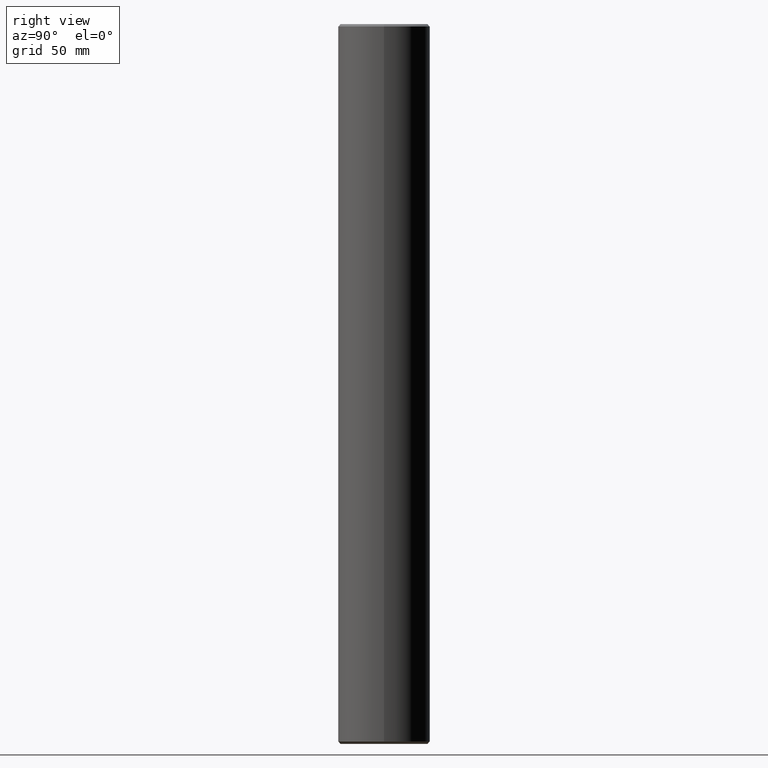
[diagram: clean part render]
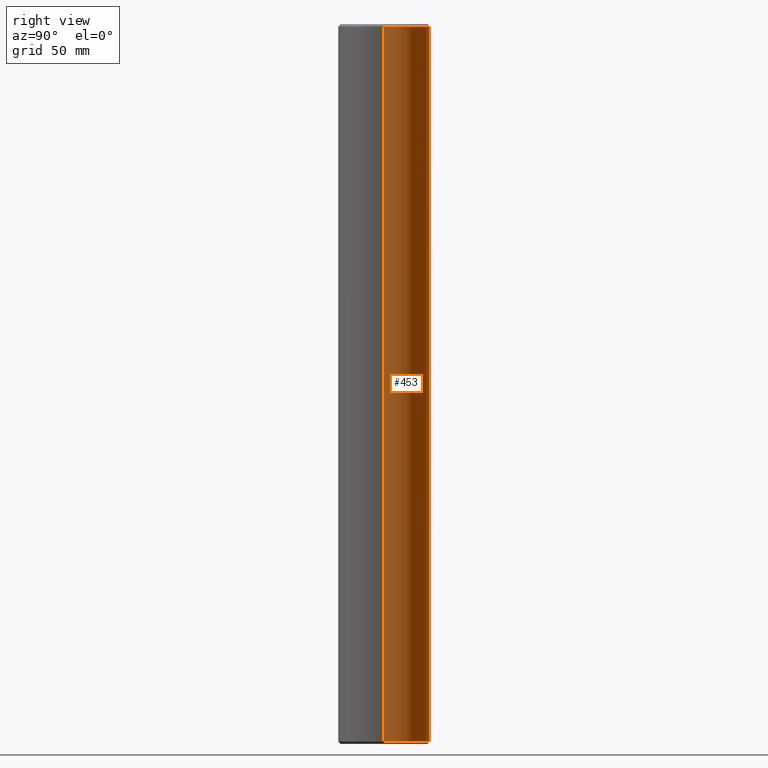
[diagram: same view with one face highlighted and labeled with its STEP entity id]
A machine part, right view. The second image highlights one B-rep face of the part: STEP entity #453.
In plain terms, the highlighted cylindrical surface (partial cylindrical patch) has radius 19.2 mm, axis along (-0, -0, -1).
Its self-contained STEP definition (entity closure, byte-faithful):
#29 = VERTEX_POINT ( 'NONE', #3915 ) ;
#98 = VERTEX_POINT ( 'NONE', #8506 ) ;
#108 = CARTESIAN_POINT ( 'NONE',  ( 19.19999999999999900, 2.351321854362917700E-015, -148.9999999999999400 ) ) ;
#450 = VECTOR ( 'NONE', #2521, 1000.000000000000000 ) ;
#453 = ADVANCED_FACE ( 'NONE', ( #8737 ), #3660, .T. ) ;
#1204 = CARTESIAN_POINT ( 'NONE',  ( 0.0000000000000000000, 0.0000000000000000000, 150.0000000000000000 ) ) ;
#1377 = ORIENTED_EDGE ( 'NONE', *, *, #6938, .T. ) ;
#1691 = DIRECTION ( 'NONE',  ( 1.000000000000000000, 0.0000000000000000000, 0.0000000000000000000 ) ) ;
#1928 = EDGE_CURVE ( 'NONE', #14259, #29, #13230, .T. ) ;
#2359 = DIRECTION ( 'NONE',  ( -0.0000000000000000000, -0.0000000000000000000, -1.000000000000000000 ) ) ;
#2521 = DIRECTION ( 'NONE',  ( -0.0000000000000000000, -0.0000000000000000000, -1.000000000000000000 ) ) ;
#2961 = DIRECTION ( 'NONE',  ( 1.000000000000000000, 0.0000000000000000000, 0.0000000000000000000 ) ) ;
#3108 = DIRECTION ( 'NONE',  ( 0.0000000000000000000, 0.0000000000000000000, -1.000000000000000000 ) ) ;
#3252 = EDGE_LOOP ( 'NONE', ( #1377, #12626, #12369, #14295 ) ) ;
#3660 = CYLINDRICAL_SURFACE ( 'NONE', #13049, 19.19999999999999900 ) ;
#3915 = CARTESIAN_POINT ( 'NONE',  ( -19.19999999999999900, 0.0000000000000000000, -148.9999999999999400 ) ) ;
#4232 = CIRCLE ( 'NONE', #10045, 19.19999999999999900 ) ;
#5397 = CARTESIAN_POINT ( 'NONE',  ( -19.19999999999999900, 0.0000000000000000000, 148.9999999999999700 ) ) ;
#6291 = VERTEX_POINT ( 'NONE', #108 ) ;
#6551 = CARTESIAN_POINT ( 'NONE',  ( -19.19999999999999900, 0.0000000000000000000, 150.0000000000000000 ) ) ;
#6729 = CARTESIAN_POINT ( 'NONE',  ( 0.0000000000000000000, 0.0000000000000000000, -148.9999999999999400 ) ) ;
#6938 = EDGE_CURVE ( 'NONE', #14259, #98, #12125, .T. ) ;
#7546 = DIRECTION ( 'NONE',  ( -0.0000000000000000000, -0.0000000000000000000, -1.000000000000000000 ) ) ;
#8506 = CARTESIAN_POINT ( 'NONE',  ( 19.19999999999999900, 2.351321854362917700E-015, 148.9999999999999700 ) ) ;
#8573 = EDGE_CURVE ( 'NONE', #98, #6291, #12473, .T. ) ;
#8737 = FACE_OUTER_BOUND ( 'NONE', #3252, .T. ) ;
#8947 = DIRECTION ( 'NONE',  ( -1.000000000000000000, 0.0000000000000000000, 0.0000000000000000000 ) ) ;
#9348 = DIRECTION ( 'NONE',  ( -0.0000000000000000000, -0.0000000000000000000, 1.000000000000000000 ) ) ;
#10045 = AXIS2_PLACEMENT_3D ( 'NONE', #6729, #9348, #1691 ) ;
#10458 = VECTOR ( 'NONE', #7546, 1000.000000000000000 ) ;
#11476 = CARTESIAN_POINT ( 'NONE',  ( 19.19999999999999900, 2.351321854362917700E-015, 150.0000000000000000 ) ) ;
#12125 = CIRCLE ( 'NONE', #12475, 19.19999999999999900 ) ;
#12215 = EDGE_CURVE ( 'NONE', #6291, #29, #4232, .T. ) ;
#12369 = ORIENTED_EDGE ( 'NONE', *, *, #12215, .T. ) ;
#12473 = LINE ( 'NONE', #11476, #450 ) ;
#12475 = AXIS2_PLACEMENT_3D ( 'NONE', #14065, #3108, #2961 ) ;
#12626 = ORIENTED_EDGE ( 'NONE', *, *, #8573, .T. ) ;
#13049 = AXIS2_PLACEMENT_3D ( 'NONE', #1204, #2359, #8947 ) ;
#13230 = LINE ( 'NONE', #6551, #10458 ) ;
#14065 = CARTESIAN_POINT ( 'NONE',  ( 0.0000000000000000000, 0.0000000000000000000, 148.9999999999999700 ) ) ;
#14259 = VERTEX_POINT ( 'NONE', #5397 ) ;
#14295 = ORIENTED_EDGE ( 'NONE', *, *, #1928, .F. ) ;